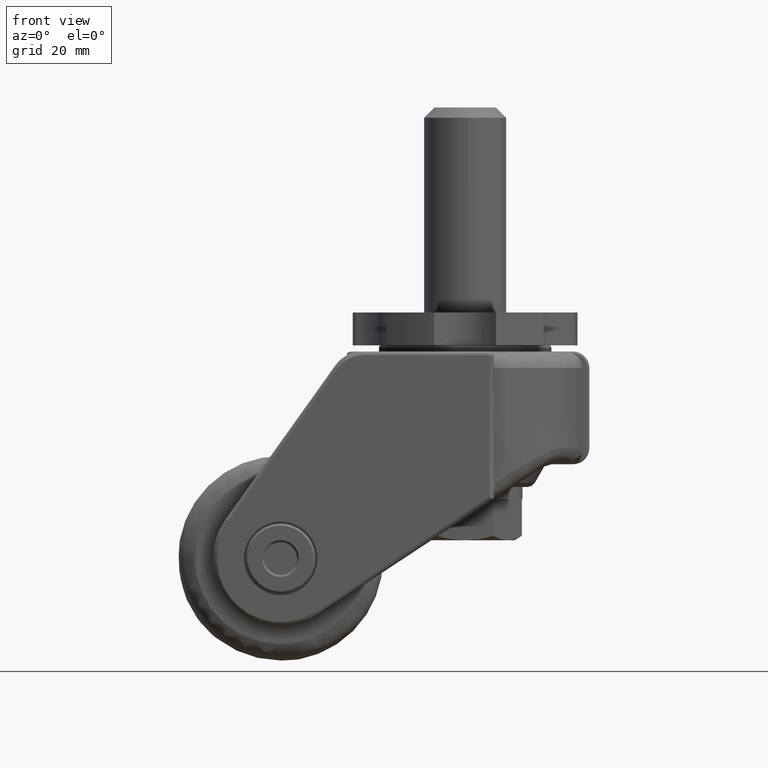
[diagram: clean part render]
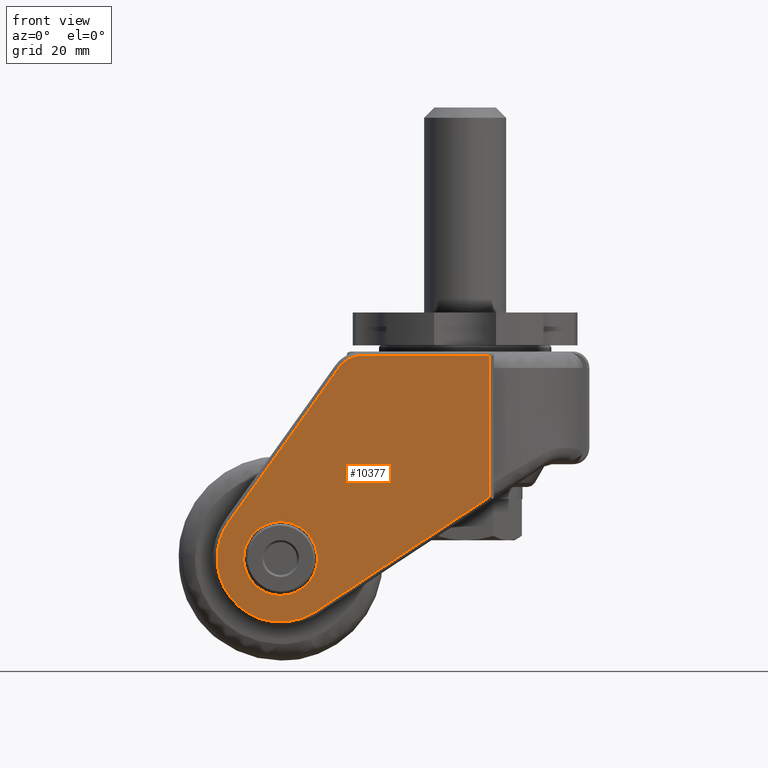
[diagram: same view with one face highlighted and labeled with its STEP entity id]
A machine part, front view. The second image highlights one B-rep face of the part: STEP entity #10377.
In plain terms, the highlighted face is a freeform B-spline surface patch.
Its self-contained STEP definition (entity closure, byte-faithful):
#6708=CARTESIAN_POINT('',(-53.937085737251891,-30.0,-55.937691887911633));
#6709=VERTEX_POINT('',#6708);
#6715=CARTESIAN_POINT('',(-45.0,-30.0,-66.0));
#6716=VERTEX_POINT('',#6715);
#6717=CARTESIAN_POINT('',(-53.937085737251898,-30.000000000000004,-55.937691887911633));
#6718=CARTESIAN_POINT('',(-54.0,-29.999999999999996,-56.466982922953392));
#6719=CARTESIAN_POINT('',(-54.0,-30.0,-57.0));
#6720=CARTESIAN_POINT('',(-54.0,-29.999999999999993,-66.0));
#6721=CARTESIAN_POINT('',(-45.0,-30.0,-66.0));
#6729=(BOUNDED_CURVE()B_SPLINE_CURVE(2,(#6717,#6718,#6719,#6720,#6721),.UNSPECIFIED.,.F.,.U.)B_SPLINE_CURVE_WITH_KNOTS((3,2,3),(0.229562473508930,0.250000000000000,0.500000000000000),.UNSPECIFIED.)CURVE()GEOMETRIC_REPRESENTATION_ITEM()RATIONAL_B_SPLINE_CURVE((0.956026754174725,0.976055948325781,1.0,0.707106781186547,1.0))REPRESENTATION_ITEM(''));
#6730=EDGE_CURVE('',#6709,#6716,#6729,.T.);
#6732=CARTESIAN_POINT('',(-36.016786814215983,-30.0,-57.549436856022751));
#6733=VERTEX_POINT('',#6732);
#6734=CARTESIAN_POINT('',(-45.0,-30.0,-66.0));
#6735=CARTESIAN_POINT('',(-36.533645398243522,-29.999999999999996,-66.000000000000014));
#6736=CARTESIAN_POINT('',(-36.016786814215990,-30.000000000000004,-57.549436856022744));
#6744=(BOUNDED_CURVE()B_SPLINE_CURVE(2,(#6734,#6735,#6736),.UNSPECIFIED.,.F.,.U.)B_SPLINE_CURVE_WITH_KNOTS((3,3),(0.500000000000000,0.739332962233938),.UNSPECIFIED.)CURVE()GEOMETRIC_REPRESENTATION_ITEM()RATIONAL_B_SPLINE_CURVE((1.0,0.719603993292574,0.976072041655991))REPRESENTATION_ITEM(''));
#6745=EDGE_CURVE('',#6716,#6733,#6744,.T.);
#6819=CARTESIAN_POINT('',(-45.0,-30.0,-48.0));
#6820=VERTEX_POINT('',#6819);
#6821=CARTESIAN_POINT('',(-36.016786814215983,-30.000000000000004,-57.549436856022751));
#6822=CARTESIAN_POINT('',(-36.0,-30.0,-57.274974869896923));
#6823=CARTESIAN_POINT('',(-36.0,-30.0,-57.0));
#6824=CARTESIAN_POINT('',(-36.0,-29.999999999999993,-48.0));
#6825=CARTESIAN_POINT('',(-45.0,-30.0,-48.0));
#6833=(BOUNDED_CURVE()B_SPLINE_CURVE(2,(#6821,#6822,#6823,#6824,#6825),.UNSPECIFIED.,.F.,.U.)B_SPLINE_CURVE_WITH_KNOTS((3,2,3),(0.739332962233938,0.750000000000000,1.0),.UNSPECIFIED.)CURVE()GEOMETRIC_REPRESENTATION_ITEM()RATIONAL_B_SPLINE_CURVE((0.976072041655991,0.987502787893974,1.0,0.707106781186547,1.0))REPRESENTATION_ITEM(''));
#6834=EDGE_CURVE('',#6733,#6820,#6833,.T.);
#6836=CARTESIAN_POINT('',(-45.0,-30.0,-48.0));
#6837=CARTESIAN_POINT('',(-52.993570733242493,-30.0,-48.0));
#6838=CARTESIAN_POINT('',(-53.937085737251898,-30.000000000000004,-55.937691887911633));
#6846=(BOUNDED_CURVE()B_SPLINE_CURVE(2,(#6836,#6837,#6838),.UNSPECIFIED.,.F.,.U.)B_SPLINE_CURVE_WITH_KNOTS((3,3),(0.0,0.229562473508930),.UNSPECIFIED.)CURVE()GEOMETRIC_REPRESENTATION_ITEM()RATIONAL_B_SPLINE_CURVE((1.0,0.731050832860767,0.956026754174725))REPRESENTATION_ITEM(''));
#6847=EDGE_CURVE('',#6820,#6709,#6846,.T.);
#9873=CARTESIAN_POINT('',(-57.614143389932487,-30.0,-47.992592685005100));
#9874=VERTEX_POINT('',#9873);
#9905=CARTESIAN_POINT('',(-36.477372864544250,-30.0,-69.946616517921996));
#9906=VERTEX_POINT('',#9905);
#9920=CARTESIAN_POINT('',(-36.477372864544250,-30.0,-69.946616517921996));
#9921=CARTESIAN_POINT('',(-47.234076580749786,-30.0,-77.027645975969534));
#9922=CARTESIAN_POINT('',(-56.166015085293303,-30.0,-67.750354037384966));
#9923=CARTESIAN_POINT('',(-65.097953589836820,-30.0,-58.473062098800348));
#9924=CARTESIAN_POINT('',(-57.614143389932487,-30.0,-47.992592685005100));
#9932=(BOUNDED_CURVE()B_SPLINE_CURVE(2,(#9920,#9921,#9922,#9923,#9924),.UNSPECIFIED.,.F.,.U.)B_SPLINE_CURVE_WITH_KNOTS((3,2,3),(0.0,0.500000000000000,1.0),.UNSPECIFIED.)CURVE()GEOMETRIC_REPRESENTATION_ITEM()RATIONAL_B_SPLINE_CURVE((1.0,0.769159588453369,1.0,0.769159588453369,1.0))REPRESENTATION_ITEM(''));
#9933=EDGE_CURVE('',#9906,#9874,#9932,.T.);
#9952=CARTESIAN_POINT('',(6.0,-30.0,-41.984188448680101));
#9953=VERTEX_POINT('',#9952);
#9967=CARTESIAN_POINT('',(6.0,-30.0,-41.984188448680101));
#9968=CARTESIAN_POINT('',(-36.477372864544250,-30.0,-69.946616517921996));
#9969=QUASI_UNIFORM_CURVE('',1,(#9967,#9968),.UNSPECIFIED.,.F.,.U.);
#9970=EDGE_CURVE('',#9953,#9906,#9969,.T.);
#9998=CARTESIAN_POINT('',(-30.793271918034101,-30.0,-10.432138631937780));
#9999=VERTEX_POINT('',#9998);
#10019=CARTESIAN_POINT('',(-57.614143389932487,-30.0,-47.992592685005100));
#10020=CARTESIAN_POINT('',(-30.793271918034101,-30.0,-10.432138631937780));
#10021=QUASI_UNIFORM_CURVE('',1,(#10019,#10020),.UNSPECIFIED.,.F.,.U.);
#10022=EDGE_CURVE('',#9874,#9999,#10021,.T.);
#10048=CARTESIAN_POINT('',(6.0,-30.0,-7.500000000000000));
#10049=VERTEX_POINT('',#10048);
#10063=CARTESIAN_POINT('',(6.0,-30.0,-7.500000000000000));
#10064=CARTESIAN_POINT('',(6.0,-30.0,-41.984188448680101));
#10065=QUASI_UNIFORM_CURVE('',1,(#10063,#10064),.UNSPECIFIED.,.F.,.U.);
#10066=EDGE_CURVE('',#10049,#9953,#10065,.T.);
#10092=CARTESIAN_POINT('',(-25.096562000000102,-30.0,-7.500000000000000));
#10093=VERTEX_POINT('',#10092);
#10121=CARTESIAN_POINT('',(-30.793271918034101,-30.0,-10.432138631937780));
#10122=CARTESIAN_POINT('',(-28.699513654355677,-29.999999999999996,-7.500000000000000));
#10123=CARTESIAN_POINT('',(-25.096562000000102,-30.0,-7.500000000000001));
#10131=(BOUNDED_CURVE()B_SPLINE_CURVE(2,(#10121,#10122,#10123),.UNSPECIFIED.,.F.,.U.)CURVE()GEOMETRIC_REPRESENTATION_ITEM()QUASI_UNIFORM_CURVE()RATIONAL_B_SPLINE_CURVE((1.0,0.889135268837177,1.0))REPRESENTATION_ITEM(''));
#10132=EDGE_CURVE('',#9999,#10093,#10131,.T.);
#10208=CARTESIAN_POINT('',(-25.096562000000102,-30.0,-7.500000000000000));
#10209=CARTESIAN_POINT('',(6.0,-30.0,-7.500000000000000));
#10210=QUASI_UNIFORM_CURVE('',1,(#10208,#10209),.UNSPECIFIED.,.F.,.U.);
#10211=EDGE_CURVE('',#10093,#10049,#10210,.T.);
#10358=CARTESIAN_POINT('',(-63.815767474042943,-30.0,-4.253544413589902));
#10359=CARTESIAN_POINT('',(9.321395617248815,-30.0,-4.253544413589902));
#10360=CARTESIAN_POINT('',(-63.815767474042943,-30.0,-75.740565685670148));
#10361=CARTESIAN_POINT('',(9.321395617248815,-30.0,-75.740565685670148));
#10362=B_SPLINE_SURFACE_WITH_KNOTS('',1,1,((#10358,#10360),(#10359,#10361)),.UNSPECIFIED.,.F.,.F.,.U.,(2,2),(2,2),(0.0,73.137163091291754),(0.0,71.487021272080241),.UNSPECIFIED.);
#10363=ORIENTED_EDGE('',*,*,#9970,.F.);
#10364=ORIENTED_EDGE('',*,*,#10066,.F.);
#10365=ORIENTED_EDGE('',*,*,#10211,.F.);
#10366=ORIENTED_EDGE('',*,*,#10132,.F.);
#10367=ORIENTED_EDGE('',*,*,#10022,.F.);
#10368=ORIENTED_EDGE('',*,*,#9933,.F.);
#10369=EDGE_LOOP('',(#10363,#10364,#10365,#10366,#10367,#10368));
#10370=FACE_OUTER_BOUND('',#10369,.T.);
#10371=ORIENTED_EDGE('',*,*,#6745,.F.);
#10372=ORIENTED_EDGE('',*,*,#6730,.F.);
#10373=ORIENTED_EDGE('',*,*,#6847,.F.);
#10374=ORIENTED_EDGE('',*,*,#6834,.F.);
#10375=EDGE_LOOP('',(#10371,#10372,#10373,#10374));
#10376=FACE_BOUND('',#10375,.T.);
#10377=ADVANCED_FACE('',(#10370,#10376),#10362,.F.);